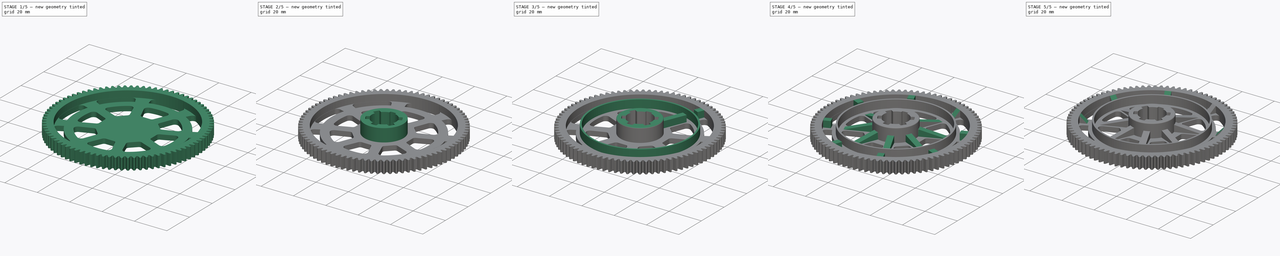
[diagram: build sequence overview — one tinted view per stage of 5, left to right]
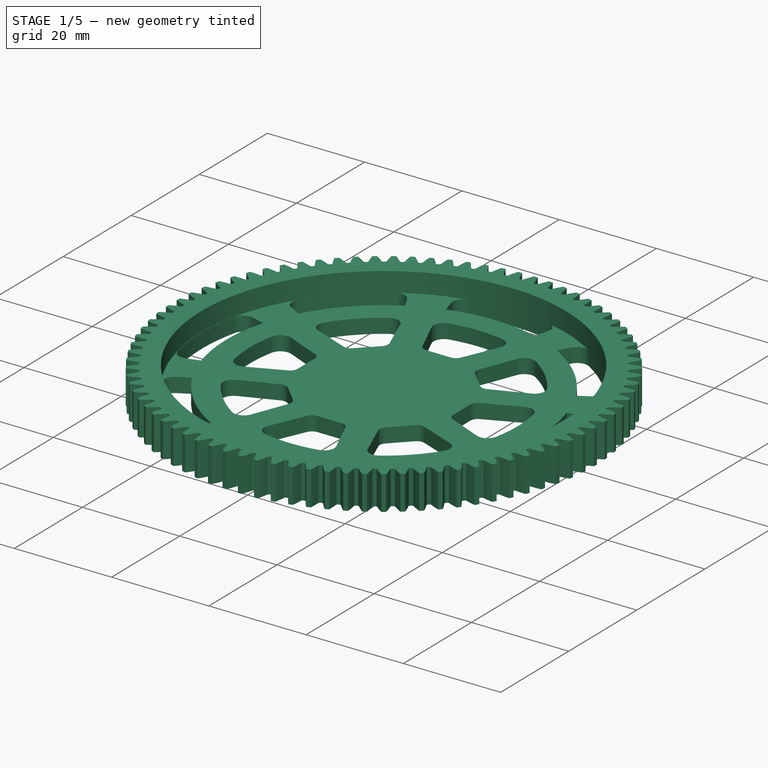
[diagram: stage 1 of 5 — iso view after this stage's code; geometry added in this stage tinted green]
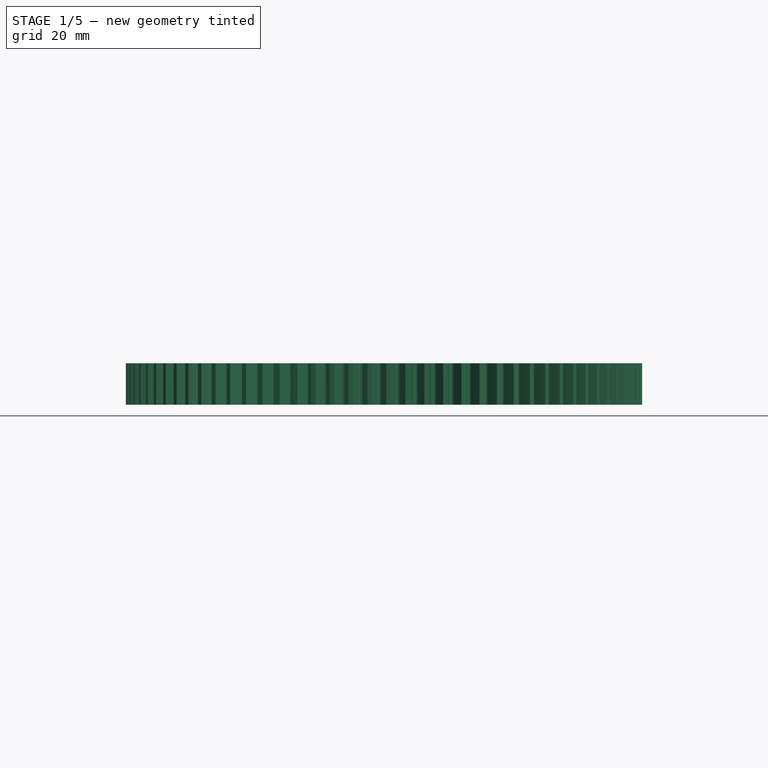
[diagram: stage 1 of 5 — front view after this stage's code; geometry added in this stage tinted green]
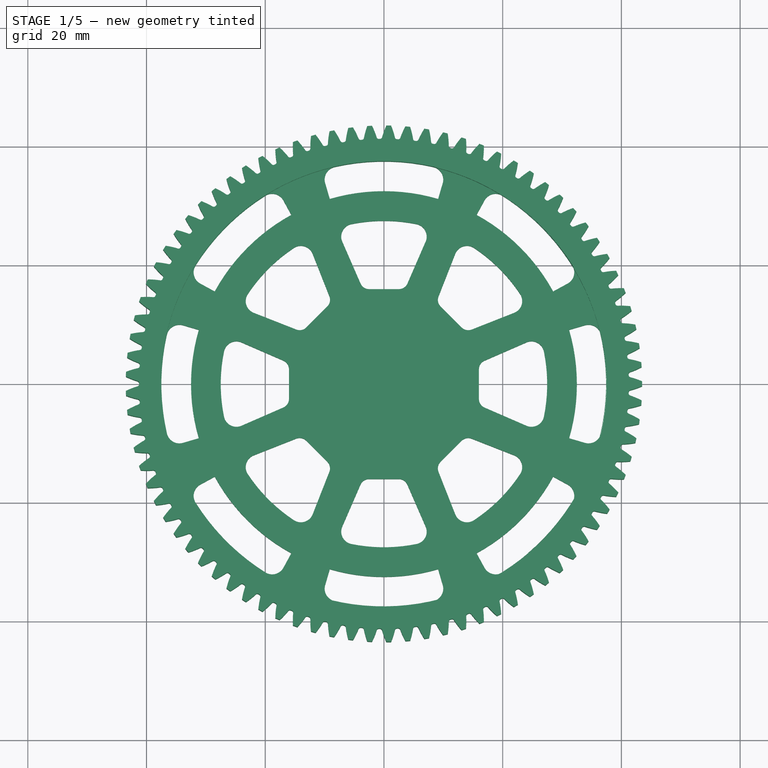
[diagram: stage 1 of 5 — top view after this stage's code; geometry added in this stage tinted green]
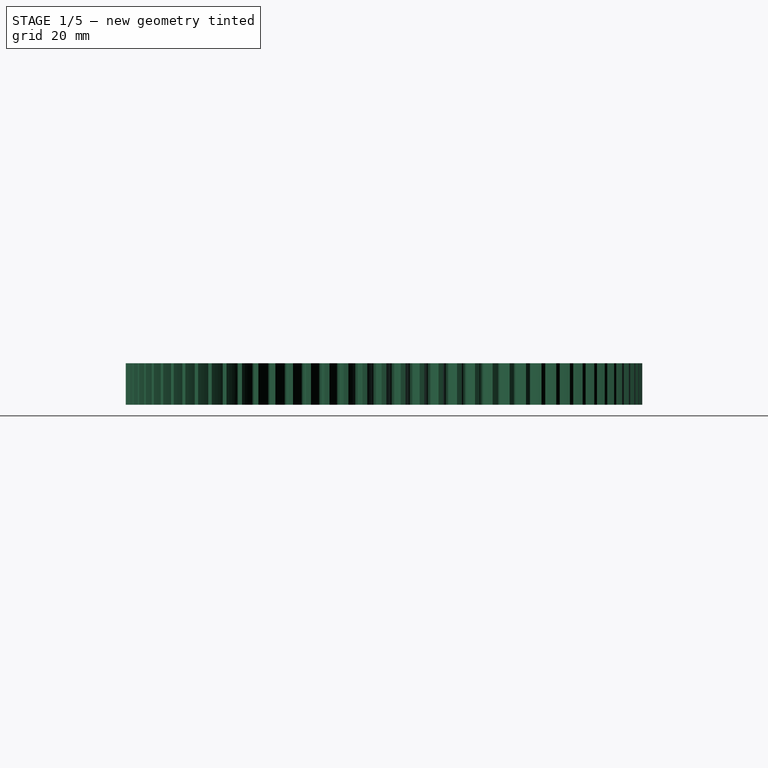
[diagram: stage 1 of 5 — right view after this stage's code; geometry added in this stage tinted green]
FCSTD DOCUMENT  (FreeCAD 0.19R24267 +148 (Git))
Label: big_gear
License: All rights reserved
LicenseURL: http://en.wikipedia.org/wiki/All_rights_reserved
objects: Sketcher::SketchObject×10, App::MeasureDistance×10, PartDesign::Plane×9, PartDesign::Pad×7, PartDesign::PolarPattern×5, PartDesign::ShapeBinder×3, PartDesign::Pocket×3, PartDesign::Body×2, PartDesign::Chamfer×2, PartDesign::Hole×2, Spreadsheet::Sheet×1, Part::Part2DObjectPython×1, PartDesign::Fillet×1, App::Part×1
note: 60 computed .brp shape members not serialized (recipe doc carries the construction recipe); baked Part::Feature solids carry a one-line shape summary decoded from their .brp

FEATURE [Spreadsheet::Sheet] Spreadsheet  label="Parameters_big"
  cells = A1=Diameters; D1=Number of teeth; G1=Height; J1=Thickness; A2=ref_diameter; B2=85; D2=N ; E2=85; G2=gear_height; H2(gear_height)=7; J2=gear_thickness; K2=6; A3=2nd_diameter; B3(second_diameter)=65; G3=tishni_balandligi; J3=two_holes_thickness; K3=5; A4=pocket_diameter; B4(pocket_diameter)=75; G4=inner_height; H4(inner_height)==4mm; J4=speed_wall_thickness; K4(speed_wall_thickness)==1mm; A5=gear_diameter; B5=87; G5=max_height; H5=16.7; A6=3rd_diameter; B6(third_diameter)==55mm; G6=inner_cirlce_height; H6=3; A7=attachment_diameter; B7(attachment_diameter)==24mm; G7=main_pocket_height; H7=4; A8=attachment_diam_hole; B8(attachment_diam_hole)==15mm; G8=attachment_height; H8(attachment_height)==8mm; G9=motion_wall_height; H9(motion_wall_height)==5mm; G10=attachment_hole_depth; H10(attachment_hole_depth)==14mm; A12=Angles; A13=hole_angle; B13(hole_angle)=32.614
FEATURE [Part::Part2DObjectPython] InvoluteGear  # Draft 2D object (typed FeaturePython)
  ExternalGear = true
  HighPrecision = true
  Modules = 1
  NumberOfTeeth = 85
  PressureAngle = 20
FEATURE [PartDesign::Pad] Pad
  Direction = (1,1,1)
  Length = 7
  Length2 = 100
  Profile = -> InvoluteGear
  Refine = true
  Type = 0
FEATURE [PartDesign::ShapeBinder] CopyXY_Plane
  TraceSupport = false
FEATURE [PartDesign::Plane] DatumPlane
  AttachmentOffset = pos=(0,0,7) rot=(0,0,1;0rad)
  Length = 61.1793
  MapMode = 5
  Placement = pos=(0,0,7) rot=(0,0,1;0rad)
  ResizeMode = 0
  Support = -> [CopyXY_Plane]
  Width = 73.6678
  expr: .AttachmentOffset.Base.z = <<Parameters_big>>.gear_height
FEATURE [Sketcher::SketchObject] Sketch
  FullyConstrained = false
  MapMode = 5
  Placement = pos=(0,0,7) rot=(0,0,1;0rad)
  Support = -> [DatumPlane]
  expr: Constraints[3] = <<Parameters_big>>.second_diameter
  expr: Constraints[2] = <<Parameters_big>>.pocket_diameter
  expr: Constraints[10] = <<Parameters_big>>.hole_angle / 2
  expr: Constraints[14] = <<Parameters_big>>.hole_angle
  sketch-geometry (11):
    g0: Circle CenterX=0 CenterY=0 CenterZ=0 NormalX=0 NormalY=0 NormalZ=1 AngleXU=0 Radius=37.5
    g1: Circle CenterX=0 CenterY=0 CenterZ=0 NormalX=0 NormalY=0 NormalZ=1 AngleXU=0 Radius=32.5
    g2: LineSegment StartX=0 StartY=0 StartZ=0 EndX=10.5294 EndY=35.9914 EndZ=0
    g3: LineSegment StartX=0 StartY=0 StartZ=0 EndX=-10.5096 EndY=35.9237 EndZ=0
    g4: ArcOfCircle CenterX=0 CenterY=0 CenterZ=0 NormalX=0 NormalY=0 NormalZ=1 AngleXU=0 Radius=18.8885 StartAngle=1.28619 EndAngle=1.5708
    g5: ArcOfCircle CenterX=0 CenterY=0 CenterZ=0 NormalX=0 NormalY=0 NormalZ=1 AngleXU=0 Radius=32.5 StartAngle=1.28619 EndAngle=1.85541
    g6: ArcOfCircle CenterX=0 CenterY=0 CenterZ=0 NormalX=0 NormalY=0 NormalZ=1 AngleXU=0 Radius=37.5 StartAngle=1.34753 EndAngle=1.79404
    g7: LineSegment StartX=9.12548 StartY=31.1926 StartZ=0 EndX=9.90253 EndY=33.8486 EndZ=0
    g8: LineSegment StartX=-9.12548 StartY=31.1926 StartZ=0 EndX=-9.90224 EndY=33.8477 EndZ=0
    g9: ArcOfCircle CenterX=7.82354 CenterY=34.4569 CenterZ=0 NormalX=0 NormalY=0 NormalZ=1 AngleXU=0 Radius=2.16613 StartAngle=5.99857 EndAngle=7.63071
    g10: ArcOfCircle CenterX=-7.82233 CenterY=34.4561 CenterZ=0 NormalX=0 NormalY=0 NormalZ=1 AngleXU=0 Radius=2.16709 StartAngle=1.79404 EndAngle=3.4262
  constraints (28):
    c: Coincident(g0,g-1)
    c: Coincident(g1,g-1)
    c: Diameter(g0) = 75
    c: Diameter(g1) = 65
    c: Coincident(g2,g-1)
    c: PointOnObject(g2,g0)
    c: Coincident(g3,g-1)
    c: Coincident(g4,g-1)
    c: PointOnObject(g4,g2)
    c: PointOnObject(g4,g-2)
    c: Angle(g4) = 0.284611
    c: Coincident(g5,g-1)
    c: PointOnObject(g5,g1)
    c: PointOnObject(g5,g3)
    c: Angle(g5) = 0.569222
    c: PointOnObject(g5,g2)
    c: Coincident(g6,g5)
    c: Coincident(g7,g5)
    c: Coincident(g8,g5)
    c: Tangent(g6,g9) = -1.5708
    c: Tangent(g7,g9) = -1.5708
    c: Tangent(g8,g10) = 1.5708
    c: Tangent(g6,g10) = -1.5708
    c: PointOnObject(g8,g3)
    c: PointOnObject(g6,g0)
    c: PointOnObject(g7,g2)
    c: Distance(g2,g6) = 2.3
    c: Distance(g6,g3) = 2.3
FEATURE [PartDesign::Body] Body001  label="hole_n1"
  Group = -> [DatumPlane,CopyXY_Plane,Sketch]
  Origin = -> Origin002
FEATURE [PartDesign::ShapeBinder] CopyXY_Plane001
  TraceSupport = false
FEATURE [PartDesign::Plane] DatumPlane001  label="holes_datum_plane"
  AttachmentOffset = pos=(0,0,7) rot=(0,0,1;0rad)
  Length = 104.381
  MapMode = 5
  Placement = pos=(0,0,7) rot=(0,0,1;0rad)
  ResizeMode = 0
  Support = -> [CopyXY_Plane001]
  Width = 104.394
  expr: .AttachmentOffset.Base.z = <<Parameters_big>>.gear_height
FEATURE [Sketcher::SketchObject] Sketch001
  FullyConstrained = false
  MapMode = 5
  Placement = pos=(0,0,7) rot=(0,0,1;0rad)
  Support = -> [DatumPlane001]
  expr: Constraints[3] = <<Parameters_big>>.second_diameter
  expr: Constraints[2] = <<Parameters_big>>.pocket_diameter
  expr: Constraints[10] = <<Parameters_big>>.hole_angle
  expr: Constraints[14] = <<Parameters_big>>.hole_angle / 2
  expr: Constraints[28] = <<Parameters_big>>.third_diameter
  expr: Constraints[49] = <<Parameters_big>>.attachment_diameter
  sketch-geometry (22):
    g0: Circle CenterX=0 CenterY=0 CenterZ=0 NormalX=0 NormalY=0 NormalZ=1 AngleXU=0 Radius=32.5
    g1: Circle CenterX=0 CenterY=0 CenterZ=0 NormalX=0 NormalY=0 NormalZ=1 AngleXU=0 Radius=37.5
    g2: LineSegment StartX=0 StartY=0 StartZ=0 EndX=10.5295 EndY=35.9917 EndZ=0
    g3: LineSegment StartX=0 StartY=0 StartZ=0 EndX=-10.5639 EndY=36.1095 EndZ=0
    g4: ArcOfCircle CenterX=0 CenterY=0 CenterZ=0 NormalX=0 NormalY=0 NormalZ=1 AngleXU=0 Radius=32.5 StartAngle=1.28619 EndAngle=1.85541
    g5: ArcOfCircle CenterX=0 CenterY=0 CenterZ=0 NormalX=0 NormalY=0 NormalZ=1 AngleXU=0 Radius=37.5 StartAngle=1.34753 EndAngle=1.79425
    g6: ArcOfCircle CenterX=0 CenterY=0 CenterZ=0 NormalX=0 NormalY=0 NormalZ=1 AngleXU=0 Radius=44.0435 StartAngle=1.28619 EndAngle=1.5708
    g7: LineSegment StartX=9.12548 StartY=31.1926 StartZ=0 EndX=9.90253 EndY=33.8487 EndZ=0
    g8: LineSegment StartX=-9.12548 StartY=31.1926 StartZ=0 EndX=-9.90439 EndY=33.855 EndZ=0
    g9: ArcOfCircle CenterX=7.82355 CenterY=34.4569 CenterZ=0 NormalX=0 NormalY=0 NormalZ=1 AngleXU=0 Radius=2.16612 StartAngle=5.99857 EndAngle=7.63071
    g10: ArcOfCircle CenterX=-7.83141 CenterY=34.4615 CenterZ=0 NormalX=0 NormalY=0 NormalZ=1 AngleXU=0 Radius=2.15988 StartAngle=1.79425 EndAngle=3.4262
    g11: Circle CenterX=0 CenterY=0 CenterZ=0 NormalX=0 NormalY=0 NormalZ=1 AngleXU=0 Radius=27.5
    g12: LineSegment StartX=0 StartY=0 StartZ=0 EndX=0 EndY=16 EndZ=0
    g13: LineSegment StartX=-2.5 StartY=16 StartZ=0 EndX=2.5 EndY=16 EndZ=0
    g14: ArcOfCircle CenterX=0 CenterY=0 CenterZ=0 NormalX=0 NormalY=0 NormalZ=1 AngleXU=0 Radius=27.5 StartAngle=1.36992 EndAngle=1.77167
    g15: LineSegment StartX=3.96397 StartY=16.9603 StartZ=0 EndX=7.02142 EndY=24.0005 EndZ=0
    g16: LineSegment StartX=-3.94448 StartY=16.9458 StartZ=0 EndX=-7.02032 EndY=23.9967 EndZ=0
    g17: ArcOfCircle CenterX=-5.06038 CenterY=24.8517 CenterZ=0 NormalX=0 NormalY=0 NormalZ=1 AngleXU=0 Radius=2.13831 StartAngle=1.77167 EndAngle=3.55294
    g18: ArcOfCircle CenterX=5.06046 CenterY=24.8521 CenterZ=0 NormalX=0 NormalY=0 NormalZ=1 AngleXU=0 Radius=2.1379 StartAngle=5.87348 EndAngle=7.6531
    g19: ArcOfCircle CenterX=2.5 CenterY=17.5961 CenterZ=0 NormalX=0 NormalY=0 NormalZ=1 AngleXU=0 Radius=1.59607 StartAngle=4.71239 EndAngle=5.87348
    g20: ArcOfCircle CenterX=-2.5 CenterY=17.5759 CenterZ=0 NormalX=0 NormalY=0 NormalZ=1 AngleXU=0 Radius=1.57594 StartAngle=3.55294 EndAngle=4.71239
    g21: Circle CenterX=0 CenterY=0 CenterZ=0 NormalX=0 NormalY=0 NormalZ=1 AngleXU=0 Radius=12
  constraints (51):
    c: Coincident(g0,g-1)
    c: Coincident(g1,g-1)
    c: Diameter(g1) = 75
    c: Diameter(g0) = 65
    c: Coincident(g2,g-1)
    c: Coincident(g3,g-1)
    c: Coincident(g4,g-1)
    c: PointOnObject(g4,g2)
    c: PointOnObject(g4,g0)
    c: Coincident(g5,g4)
    c: Angle(g4) = 0.569222
    c: Coincident(g6,g4)
    c: PointOnObject(g6,g2)
    c: PointOnObject(g6,g-2)
    c: Angle(g6) = 0.284611
    c: Coincident(g7,g4)
    c: Coincident(g8,g4)
    c: Tangent(g5,g9) = -1.5708
    c: Tangent(g7,g9) = -1.5708
    c: PointOnObject(g4,g3)
    c: PointOnObject(g5,g1)
    c: PointOnObject(g7,g2)
    c: Tangent(g8,g10) = 1.5708
    c: Tangent(g5,g10) = -1.5708
    c: Distance(g5,g2) = 2.3
    c: Distance(g3,g5) = 2.3
    c: PointOnObject(g8,g3)
    c: Coincident(g11,g4)
    c: Diameter(g11) = 55
    c: Coincident(g12,g4)
    c: PointOnObject(g12,g-2)
    c: DistanceY(g12,g12) = 16
    c: Horizontal(g13)
    c: Coincident(g14,g4)
    c: Tangent(g14,g17) = -1.5708
    c: Tangent(g16,g17) = 1.5708
    c: PointOnObject(g16,g3)
    c: Tangent(g14,g18) = -1.5708
    c: Tangent(g15,g18) = -1.5708
    c: PointOnObject(g15,g2)
    c: PointOnObject(g14,g11)
    c: Tangent(g13,g19) = -1.5708
    c: Tangent(g15,g19) = -1.5708
    c: Tangent(g13,g20) = -1.5708
    c: Tangent(g16,g20) = 1.5708
    c: Distance(g14,g2) = 2.3
    c: Distance(g14,g3) = 2.3
    c: Symmetric(g13,g13,g12)
    c: Coincident(g21,g4)
    c: Diameter(g21) = 24
    c: DistanceX(g13,g13) = 5
FEATURE [PartDesign::Plane] DatumPlane002  label="pocket_hole_datum_plane"
  AttachmentOffset = pos=(-1,0,0) rot=(0,0,1;0rad)
  Length = 104.381
  MapMode = 5
  Placement = pos=(-1,0,7) rot=(0,0,1;0rad)
  ResizeMode = 0
  Width = 104.394
FEATURE [Sketcher::SketchObject] Sketch002
  FullyConstrained = false
  MapMode = 5
  Placement = pos=(-1,0,7) rot=(0,0,1;0rad)
  Support = -> [DatumPlane002]
  expr: Constraints[0] = <<Parameters_big>>.pocket_diameter
  sketch-geometry (1):
    g0: Circle CenterX=0.920141 CenterY=-0.02579 CenterZ=0 NormalX=0 NormalY=0 NormalZ=1 AngleXU=0 Radius=37.5
  constraints (2):
    c: Diameter(g0) = 75
    c: DistanceY(g0,g-1) = 0.02579
FEATURE [PartDesign::Pocket] Pocket001  label="pocket_hole"
  BaseFeature = -> Pad
  Length = 4
  Length2 = 100
  Profile = -> Sketch002
  Refine = true
  Type = 0
  expr: Length = <<Parameters_big>>.inner_height
FEATURE [App::MeasureDistance] Distance  label="Distance: 4.20 mm"
  Distance = 4.19532
  P1 = (-8.77176,15.8444,7)
  P2 = (-4.82441,17.2653,7)
FEATURE [PartDesign::Pocket] Pocket  label="main_holes"
  BaseFeature = -> Pocket001
  Length = 0
  Length2 = 100
  Profile = -> Sketch001
  Refine = true
  Type = 3
  UpToFace = -> Pocket001 [Face4]
FEATURE [PartDesign::PolarPattern] PolarPattern
  Angle = 360
  Axis = -> Sketch001 [N_Axis]
  BaseFeature = -> Pocket
  Occurrences = 8
  Originals = -> [Pocket]
  Refine = true
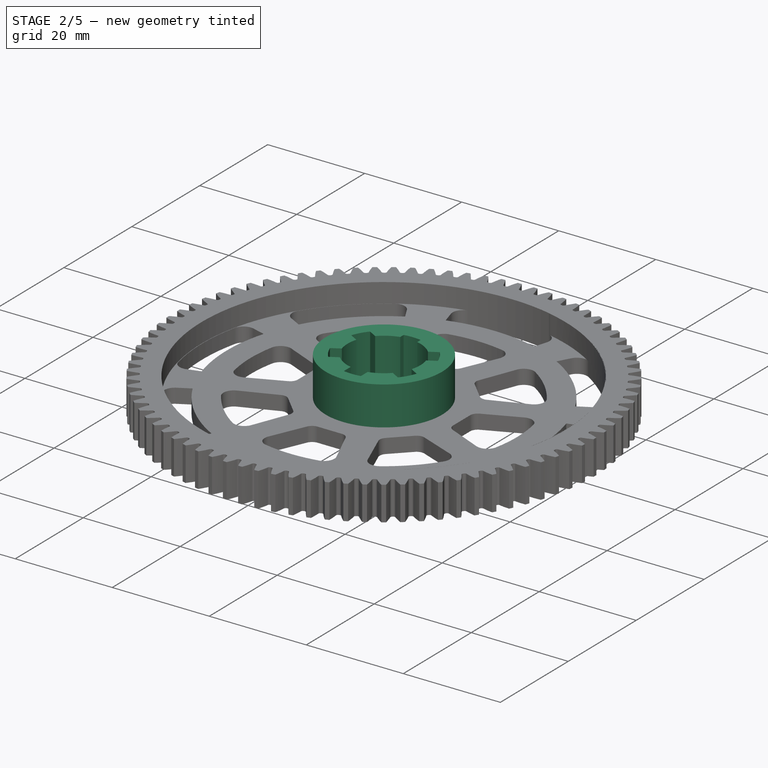
[diagram: stage 2 of 5 — iso view after this stage's code; geometry added in this stage tinted green]
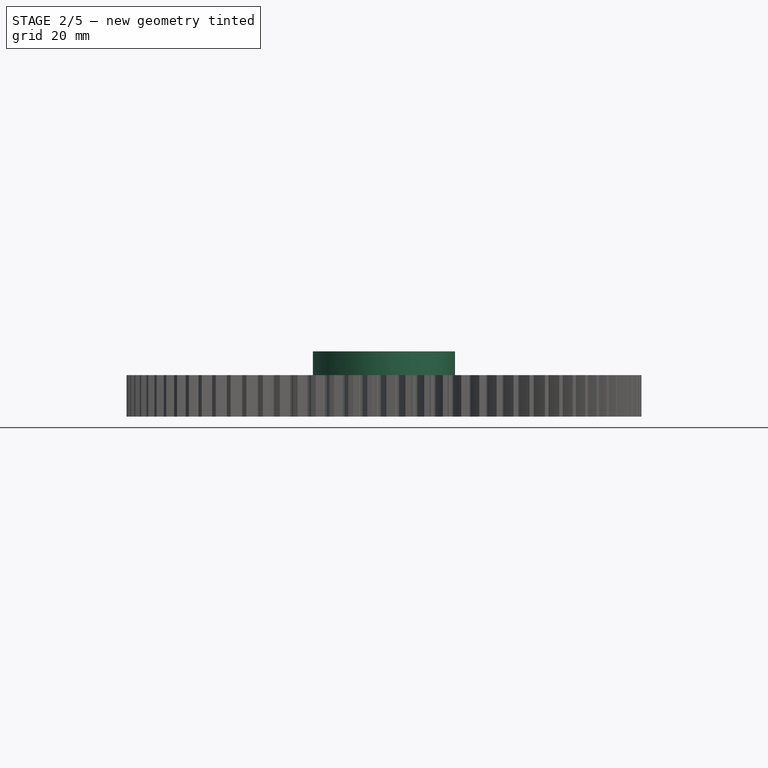
[diagram: stage 2 of 5 — front view after this stage's code; geometry added in this stage tinted green]
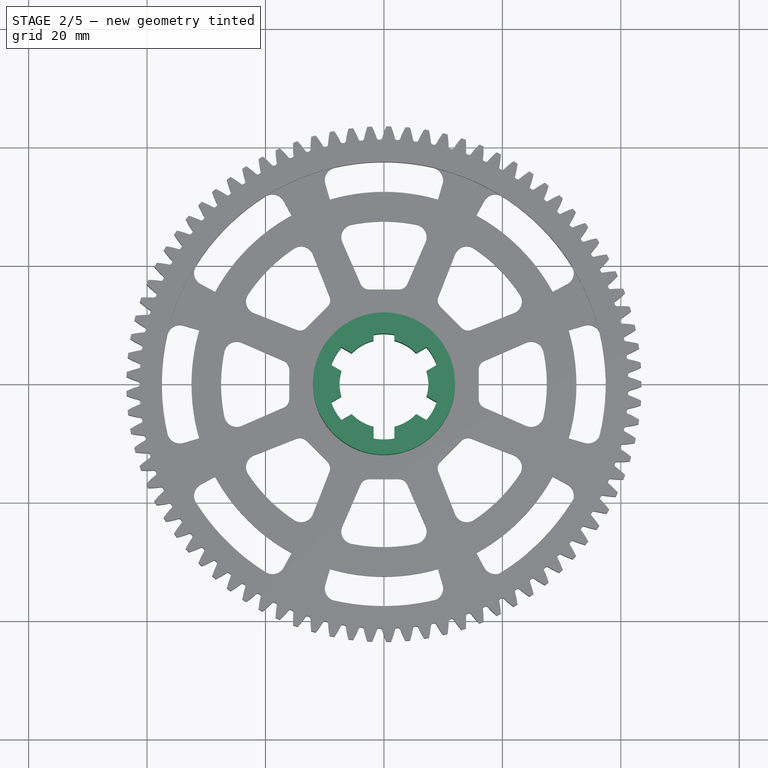
[diagram: stage 2 of 5 — top view after this stage's code; geometry added in this stage tinted green]
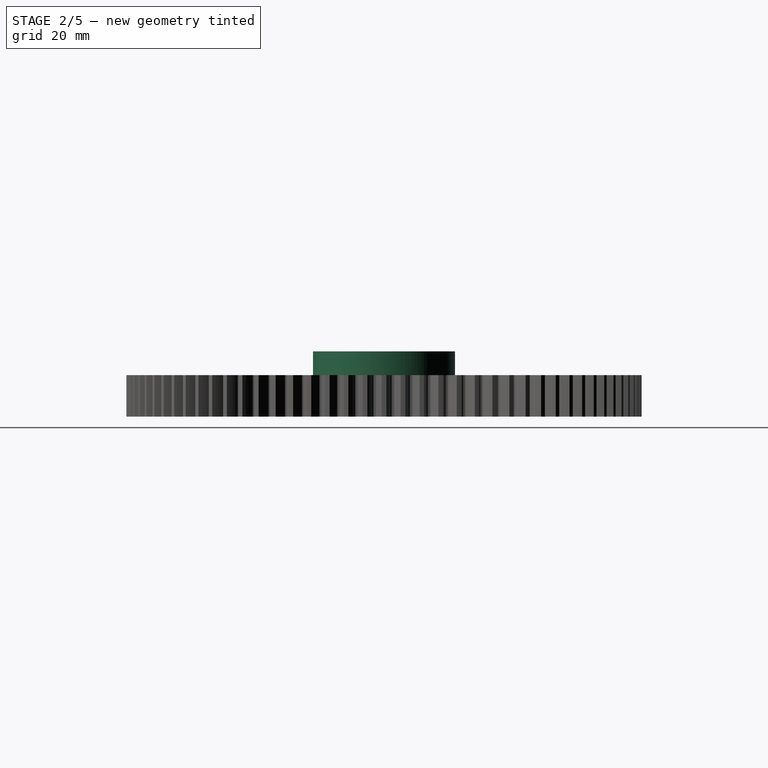
[diagram: stage 2 of 5 — right view after this stage's code; geometry added in this stage tinted green]
FEATURE [PartDesign::Plane] DatumPlane003  label="diameter_attachment_datum_plane"
  Length = 104.381
  MapMode = 5
  Placement = pos=(0,0,3) rot=(0,0,1;0rad)
  ResizeMode = 0
  Support = -> [PolarPattern]
  Width = 104.394
FEATURE [Sketcher::SketchObject] Sketch003  label="atahment"
  FullyConstrained = true
  MapMode = 5
  Placement = pos=(0,0,3) rot=(0,0,1;0rad)
  Support = -> [DatumPlane003]
  sketch-geometry (1):
    g0: Circle CenterX=0 CenterY=0 CenterZ=0 NormalX=0 NormalY=0 NormalZ=1 AngleXU=0 Radius=12
  constraints (2):
    c: Coincident(g0,g-1)
    c: Diameter(g0) = 24
FEATURE [PartDesign::Pad] Pad001  label="1mm_pad"
  BaseFeature = -> PolarPattern
  Direction = (1,1,1)
  Length = 8
  Length2 = 100
  Profile = -> Sketch003
  Refine = true
  Type = 0
  expr: Length = <<Parameters_big>>.attachment_height
FEATURE [PartDesign::Plane] DatumPlane004  label="attachment_hole_datum_plane"
  Length = 104.381
  MapMode = 5
  Placement = pos=(0,0,11) rot=(0,0,1;0rad)
  ResizeMode = 0
  Support = -> [Pad001]
  Width = 104.394
FEATURE [Sketcher::SketchObject] Sketch004
  FullyConstrained = true
  MapMode = 5
  Placement = pos=(0,0,11) rot=(0,0,1;0rad)
  Support = -> [DatumPlane004]
FEATURE [Sketcher::SketchObject] Sketch005  label="hole_attachment"
  FullyConstrained = true
  MapMode = 5
  Placement = pos=(0,0,11) rot=(0,0,1;0rad)
  Support = -> [DatumPlane004]
  expr: Constraints[1] = <<Parameters_big>>.attachment_diam_hole
  sketch-geometry (5):
    g0: ArcOfCircle CenterX=0 CenterY=0 CenterZ=0 NormalX=0 NormalY=0 NormalZ=1 AngleXU=0 Radius=7.5 StartAngle=1.8063 EndAngle=7.61848
    g1: LineSegment StartX=-1.75 StartY=7.29298 StartZ=0 EndX=1.75 EndY=7.29298 EndZ=0
    g2: LineSegment StartX=1.75 StartY=7.29298 StartZ=0 EndX=1.75 EndY=9.29298 EndZ=0
    g3: LineSegment StartX=-1.75 StartY=7.29298 StartZ=0 EndX=-1.75 EndY=9.29298 EndZ=0
    g4: ArcOfCircle CenterX=0 CenterY=0 CenterZ=0 NormalX=0 NormalY=0 NormalZ=1 AngleXU=0 Radius=9.45632 StartAngle=1.38466 EndAngle=1.75693
  constraints (14):
    c: Coincident(g0,g-1)
    c: Diameter(g0) = 15
    c: DistanceX(g1,g1) = 3.5
    c: Coincident(g2,g1)
    c: Vertical(g2)
    c: Coincident(g3,g1)
    c: Vertical(g3)
    c: Equal(g3,g2)
    c: DistanceY(g2,g2) = 2
    c: Coincident(g4,g0)
    c: Coincident(g4,g2)
    c: Coincident(g4,g3)
    c: Coincident(g0,g1)
    c: Coincident(g0,g1)
FEATURE [App::MeasureDistance] Distance001  label="Distance: 2.06 mm"
  Distance = 2.05605
  P1 = (-1.84041,9.31807,14)
  P2 = (-1.03662,7.42565,14)
FEATURE [App::MeasureDistance] Distance002  label="Distance: 2.15 mm"
  Distance = 2.1506
  P1 = (-1.87757,9.40694,14)
  P2 = (-1.04322,7.42478,14)
FEATURE [PartDesign::Pocket] Pocket002  label="attachment_hole"
  BaseFeature = -> Pad001
  Length = 14
  Length2 = 100
  Profile = -> Sketch005
  Refine = true
  Type = 0
  expr: Length = <<Parameters_big>>.attachment_hole_depth
FEATURE [PartDesign::PolarPattern] PolarPattern001  label="attahcment_hole_pattern"
  Angle = 360
  Axis = -> Sketch005 [N_Axis]
  BaseFeature = -> Pocket002
  Occurrences = 6
  Originals = -> [Pocket002]
  Refine = true
FEATURE [PartDesign::Pad] Pad002
  BaseFeature = -> PolarPattern001
  Direction = (1,1,1)
  Length = 1
  Length2 = 100
  Profile = -> PolarPattern001 [Face619]
  Refine = true
  Type = 0
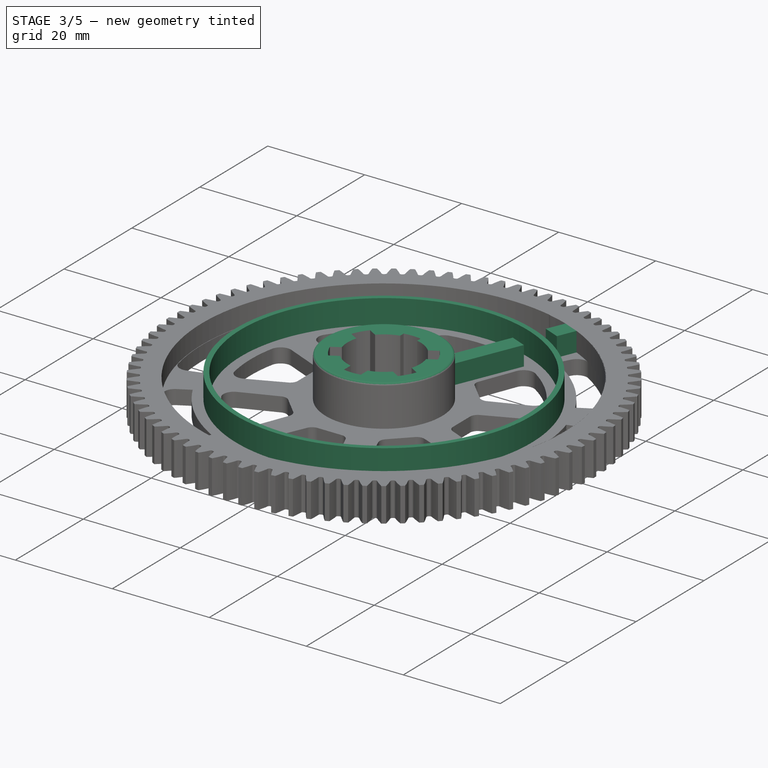
[diagram: stage 3 of 5 — iso view after this stage's code; geometry added in this stage tinted green]
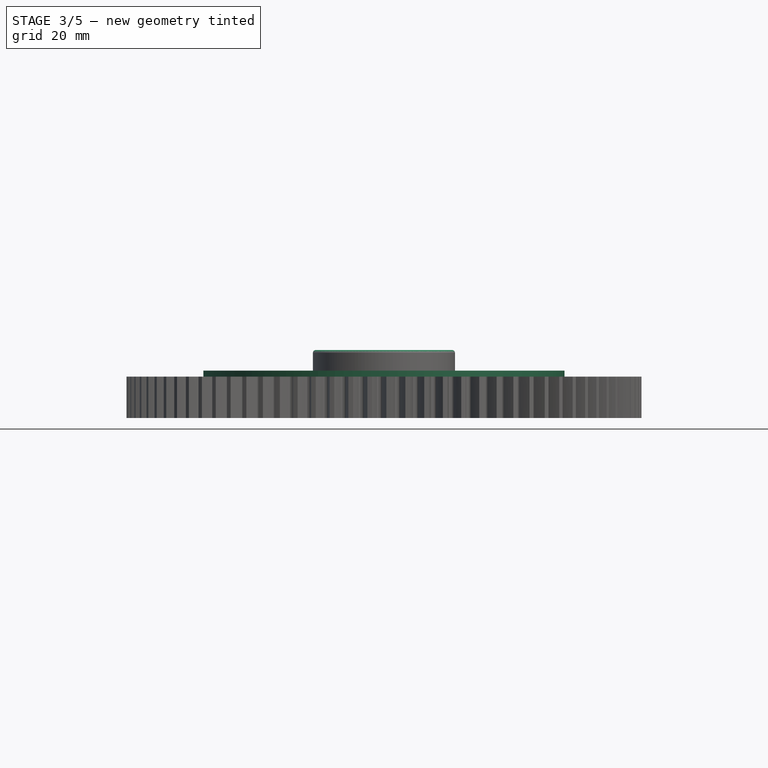
[diagram: stage 3 of 5 — front view after this stage's code; geometry added in this stage tinted green]
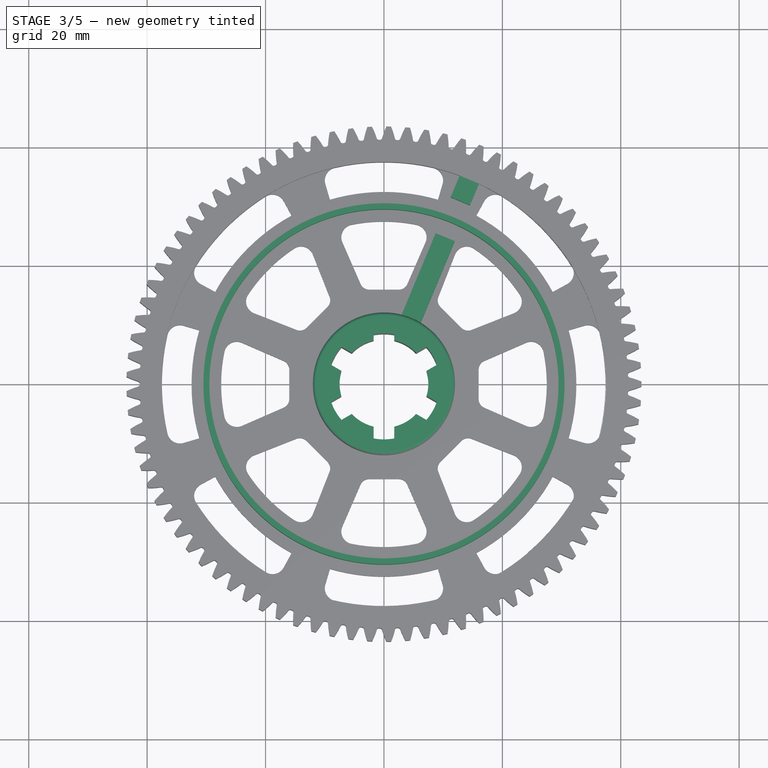
[diagram: stage 3 of 5 — top view after this stage's code; geometry added in this stage tinted green]
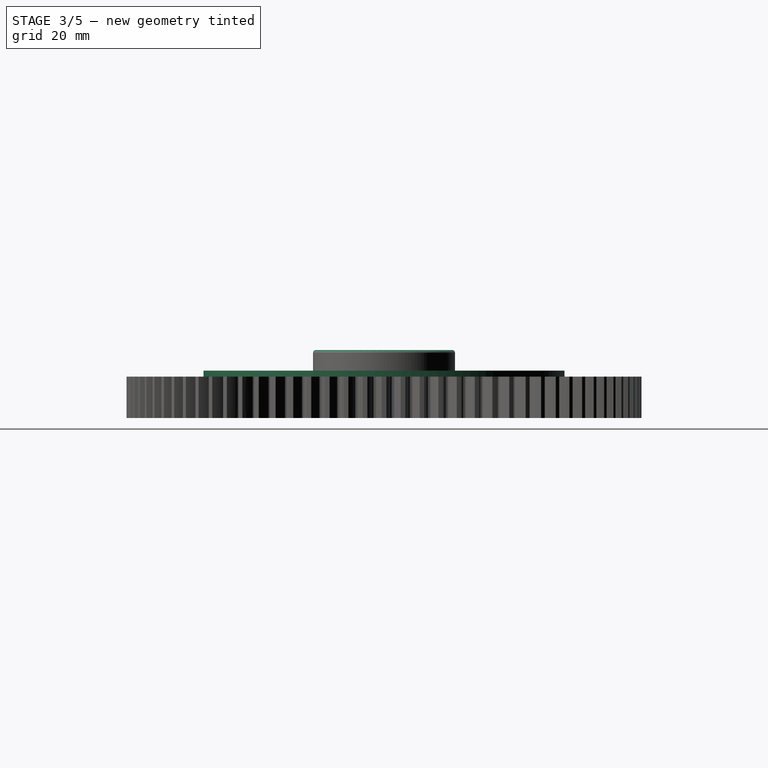
[diagram: stage 3 of 5 — right view after this stage's code; geometry added in this stage tinted green]
FEATURE [PartDesign::Plane] DatumPlane005
  Length = 104.381
  Placement = pos=(0,0,3) rot=(0,0,1;0rad)
  ResizeMode = 0
  Support = -> [Origin001]
  Width = 104.394
FEATURE [Sketcher::SketchObject] Sketch006  label="motion_wall"
  FullyConstrained = true
  MapMode = 5
  Placement = pos=(0,0,3) rot=(0,0,1;0rad)
  Support = -> [DatumPlane005]
  expr: Constraints[1] = <<Parameters_big>>.second_diameter
  expr: Constraints[3] = <<Parameters_big>>.second_diameter - 2 * 2
  expr: Constraints[5] = <<Parameters_big>>.third_diameter
  expr: Constraints[7] = <<Parameters_big>>.third_diameter + 2 * 2mm
  sketch-geometry (4):
    g0: Circle CenterX=0 CenterY=0 CenterZ=0 NormalX=0 NormalY=0 NormalZ=1 AngleXU=0 Radius=32.5
    g1: Circle CenterX=0 CenterY=0 CenterZ=0 NormalX=0 NormalY=0 NormalZ=1 AngleXU=0 Radius=30.5
    g2: Circle CenterX=0 CenterY=0 CenterZ=0 NormalX=0 NormalY=0 NormalZ=1 AngleXU=0 Radius=27.5
    g3: Circle CenterX=0 CenterY=0 CenterZ=0 NormalX=0 NormalY=0 NormalZ=1 AngleXU=0 Radius=29.5
  constraints (8):
    c: Coincident(g0,g-1)
    c: Diameter(g0) = 65
    c: Coincident(g1,g-1)
    c: Diameter(g1) = 61
    c: Coincident(g2,g1)
    c: Diameter(g2) = 55
    c: Coincident(g3,g1)
    c: Diameter(g3) = 59
FEATURE [PartDesign::Pad] Pad003
  BaseFeature = -> Pad002
  Direction = (1,1,1)
  Length = 5
  Length2 = 100
  Profile = -> Sketch006
  Refine = true
  Type = 0
  expr: Length = <<Parameters_big>>.motion_wall_height
FEATURE [App::MeasureDistance] Distance003  label="Distance: 2.92 mm"
  Distance = 2.92356
  P1 = (-15.5509,-22.6715,3)
  P2 = (-13.1754,-20.9674,3)
FEATURE [PartDesign::Pad] Pad004
  BaseFeature = -> Pad003
  Direction = (1,1,1)
  Length = 0.5
  Length2 = 100
  Profile = -> Pad003 [Face654]
  Refine = true
  Type = 0
FEATURE [PartDesign::Fillet] Fillet
  Base = -> Pad004 [Edge1]
  BaseFeature = -> Pad004
  Radius = 0.5
  Refine = true
  SupportTransform = false
FEATURE [App::MeasureDistance] Distance004  label="Distance: 1.38 mm"
  Distance = 1.38242
  P1 = (16.6159,-33.6028,7)
  P2 = (16.0512,-32.341,7)
FEATURE [PartDesign::ShapeBinder] CopyYZ_Plane
  Placement = pos=(0,0,0) rot=(0.57735,0.57735,0.57735;2.0944rad)
  TraceSupport = false
FEATURE [PartDesign::Plane] DatumPlane006
  Length = 104.381
  MapMode = 5
  Placement = pos=(0,0,3) rot=(0,0,1;0rad)
  ResizeMode = 0
  Support = -> [Fillet]
  Width = 104.394
FEATURE [Sketcher::SketchObject] Sketch007
  FullyConstrained = true
  MapMode = 5
  Placement = pos=(0,0,3) rot=(0,0,1;0rad)
  Support = -> [DatumPlane006]
  expr: Constraints[1] = <<Parameters_big>>.pocket_diameter
  expr: Constraints[6] = <<Parameters_big>>.attachment_diameter
  sketch-geometry (13):
    g0: Circle CenterX=0 CenterY=0 CenterZ=0 NormalX=0 NormalY=0 NormalZ=1 AngleXU=0 Radius=37.5
    g1: LineSegment StartX=16.0411 StartY=33.8959 StartZ=0 EndX=6.18698 EndY=10.2821 EndZ=0
    g2: LineSegment StartX=12.811 StartY=35.2438 StartZ=0 EndX=2.95694 EndY=11.63 EndZ=0
    g3: Circle CenterX=0 CenterY=0 CenterZ=0 NormalX=0 NormalY=0 NormalZ=1 AngleXU=0 Radius=12
    g4: LineSegment StartX=0 StartY=0 StartZ=0 EndX=0 EndY=12 EndZ=0
    g5: LineSegment StartX=6.18698 StartY=10.2821 StartZ=0 EndX=11.9637 EndY=24.1251 EndZ=0
    g6: LineSegment StartX=2.95694 StartY=11.63 StartZ=0 EndX=8.73365 EndY=25.473 EndZ=0
    g7: LineSegment StartX=8.73365 StartY=25.473 StartZ=0 EndX=11.9637 EndY=24.1251 EndZ=0
    g8: ArcOfCircle CenterX=0 CenterY=0 CenterZ=0 NormalX=0 NormalY=0 NormalZ=1 AngleXU=0 Radius=12 StartAngle=1.02911 EndAngle=1.32182
    g9: LineSegment StartX=12.811 StartY=35.2438 StartZ=0 EndX=11.2706 EndY=31.5524 EndZ=0
    g10: LineSegment StartX=11.2706 StartY=31.5524 StartZ=0 EndX=14.5006 EndY=30.2045 EndZ=0
    g11: LineSegment StartX=14.5006 StartY=30.2045 StartZ=0 EndX=16.0411 EndY=33.8959 EndZ=0
    g12: ArcOfCircle CenterX=0 CenterY=0 CenterZ=0 NormalX=0 NormalY=0 NormalZ=1 AngleXU=0 Radius=37.5 StartAngle=1.12878 EndAngle=1.22215
  constraints (35):
    c: Coincident(g0,g-1)
    c: Diameter(g0) = 75
    c: PointOnObject(g1,g0)
    c: Parallel(g2,g1)
    c: Distance(g2,g1) = 3.5
    c: Coincident(g3,g-1)
    c: Diameter(g3) = 24
    c: PointOnObject(g1,g3)
    c: Coincident(g4,g-1)
    c: PointOnObject(g4,g3)
    c: Vertical(g4)
    c: Equal(g1,g2)
    c: Coincident(g5,g1)
    c: PointOnObject(g5,g1)
    c: Distance(g5) = 15
    c: Coincident(g6,g2)
    c: PointOnObject(g6,g2)
    c: Distance(g6) = 15
    c: Coincident(g7,g6)
    c: Coincident(g7,g5)
    c: Coincident(g8,g-1)
    c: Coincident(g8,g5)
    c: Coincident(g8,g6)
    c: Coincident(g2,g9)
    c: PointOnObject(g9,g2)
    c: Coincident(g9,g10)
    c: PointOnObject(g10,g1)
    c: Coincident(g10,g11)
    c: Coincident(g11,g1)
    c: Distance(g11) = 4
    c: Equal(g9,g11)
    c: Coincident(g12,g8)
    c: Coincident(g12,g11)
    c: Coincident(g12,g9)
    c: Distance(g4,g6) = 2.98
FEATURE [PartDesign::Pad] Pad005  label="inner_support"
  BaseFeature = -> Fillet
  Direction = (1,1,1)
  Length = 4
  Length2 = 100
  Profile = -> Sketch007
  Refine = true
  Type = 0
  expr: Length = <<Parameters_big>>.inner_height
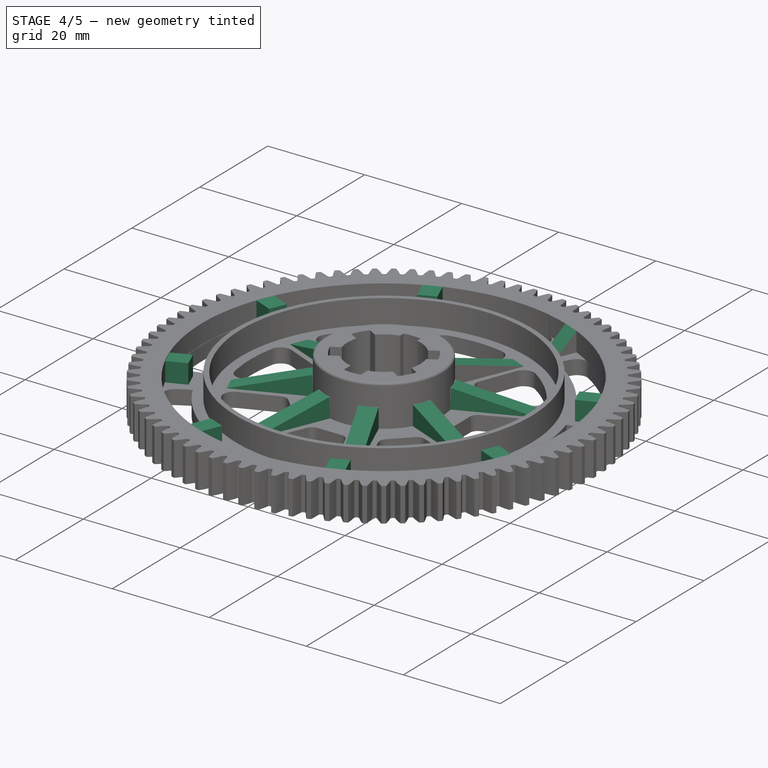
[diagram: stage 4 of 5 — iso view after this stage's code; geometry added in this stage tinted green]
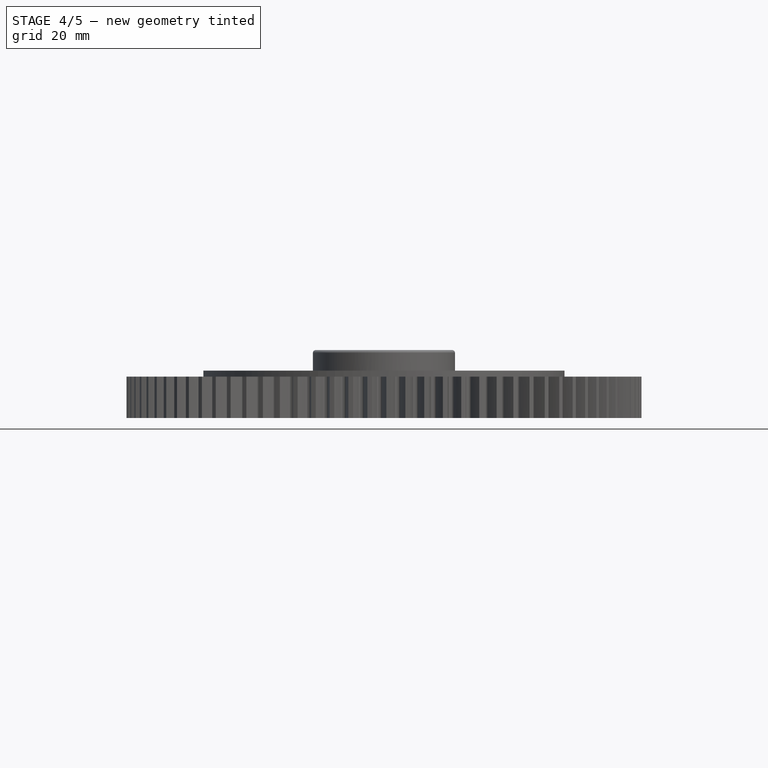
[diagram: stage 4 of 5 — front view after this stage's code; geometry added in this stage tinted green]
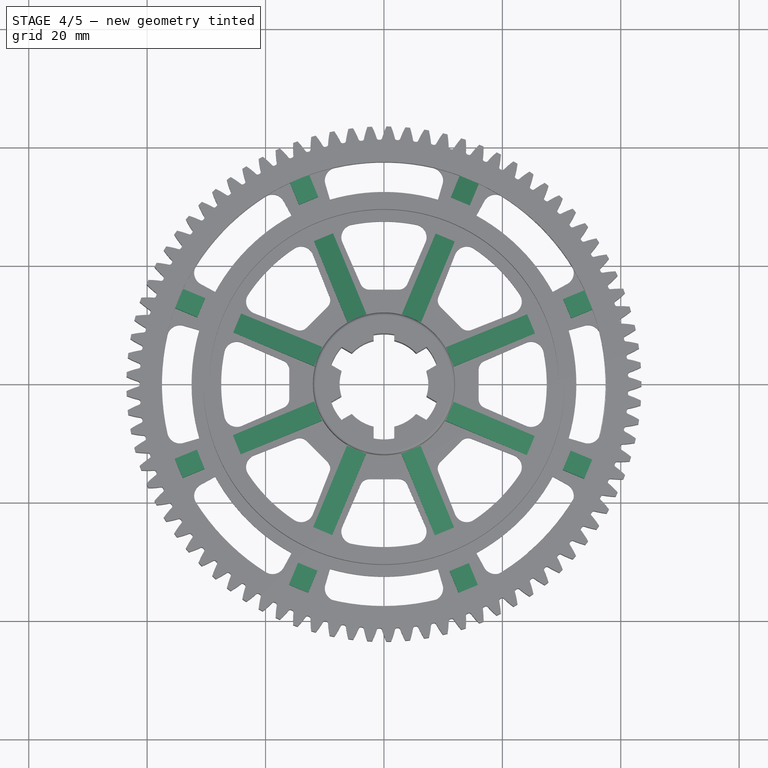
[diagram: stage 4 of 5 — top view after this stage's code; geometry added in this stage tinted green]
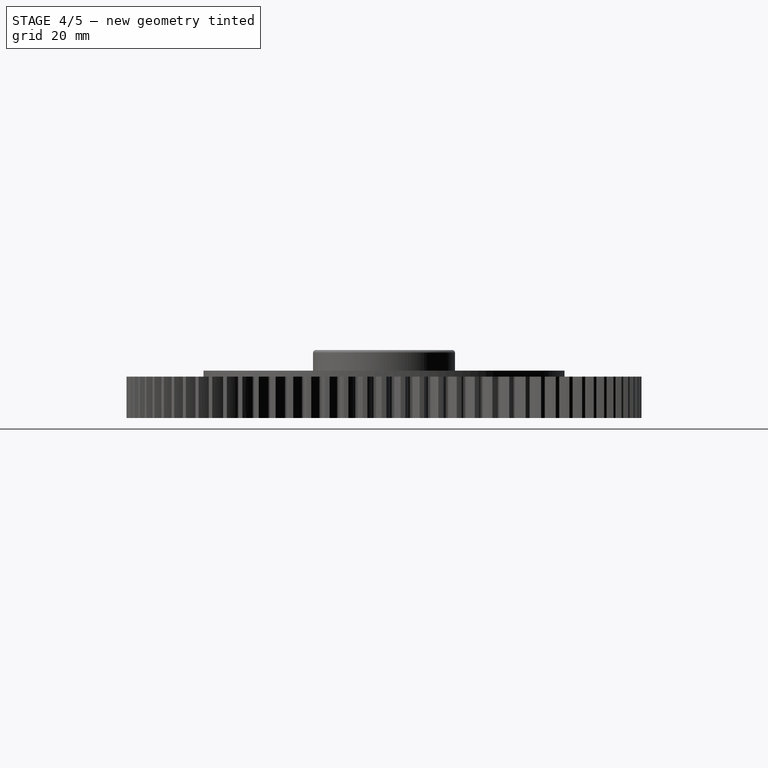
[diagram: stage 4 of 5 — right view after this stage's code; geometry added in this stage tinted green]
FEATURE [App::MeasureDistance] Distance005  label="Distance: 3.94 mm"
  Distance = 3.945
  P1 = (12.7345,35.2157,7)
  P2 = (11.2706,31.5524,7)
FEATURE [PartDesign::Chamfer] Chamfer  label="small_support_chamfer"
  Angle = 45
  Base = -> Pad005 [Edge2019]
  BaseFeature = -> Pad005
  ChamferType = 1
  FlipDirection = false
  Refine = true
  Size = 3.99
  Size2 = 3.94
  SupportTransform = false
FEATURE [App::MeasureDistance] Distance006  label="Distance: 4.00 mm"
  Distance = 4.00013
  P1 = (14.5006,30.2045,7)
  P2 = (14.5314,30.2134,3)
FEATURE [App::MeasureDistance] Distance007  label="Distance: 14.98 mm"
  Distance = 14.9795
  P1 = (11.9637,24.1251,7)
  P2 = (6.19488,10.301,7)
FEATURE [App::MeasureDistance] Distance008  label="Distance: 4.00 mm001"
  Distance = 4.00003
  P1 = (8.72748,25.4861,3)
  P2 = (8.73365,25.473,7)
FEATURE [PartDesign::Chamfer] Chamfer001  label="long_support_chamfer"
  Angle = 45
  Base = -> Chamfer [Edge2023]
  BaseFeature = -> Chamfer
  ChamferType = 1
  FlipDirection = false
  Refine = true
  Size = 3.99
  Size2 = 14.85
  SupportTransform = false
FEATURE [PartDesign::PolarPattern] PolarPattern002
  Angle = 360
  Axis = -> Sketch007 [N_Axis]
  BaseFeature = -> Chamfer001
  Occurrences = 8
  Originals = -> [Pad005]
  Refine = true
FEATURE [PartDesign::PolarPattern] PolarPattern003
  Angle = 360
  Axis = -> Z_Axis001
  BaseFeature = -> PolarPattern002
  Occurrences = 8
  Originals = -> [Chamfer001]
  Refine = true
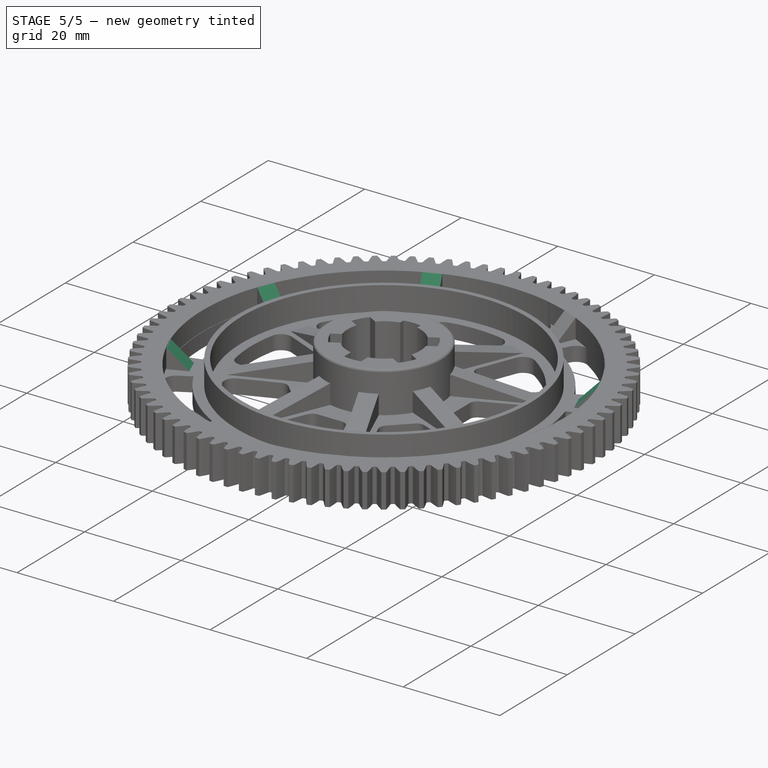
[diagram: stage 5 of 5 — iso view after this stage's code; geometry added in this stage tinted green]
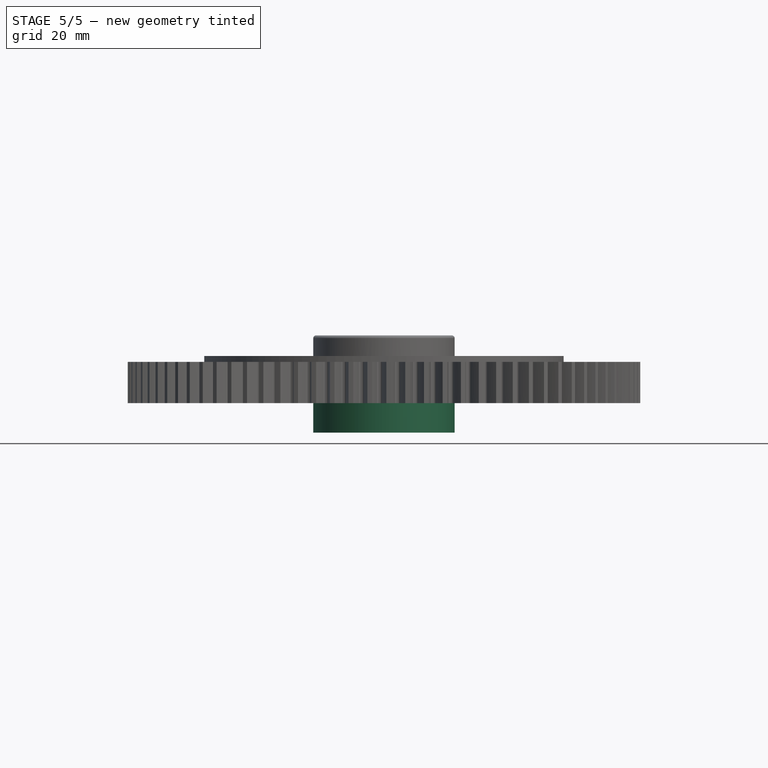
[diagram: stage 5 of 5 — front view after this stage's code; geometry added in this stage tinted green]
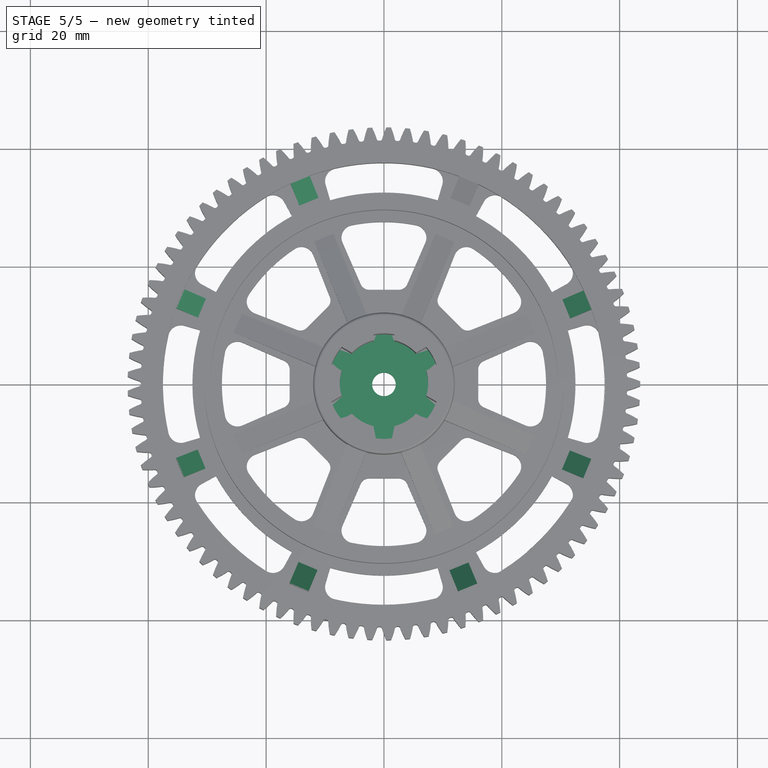
[diagram: stage 5 of 5 — top view after this stage's code; geometry added in this stage tinted green]
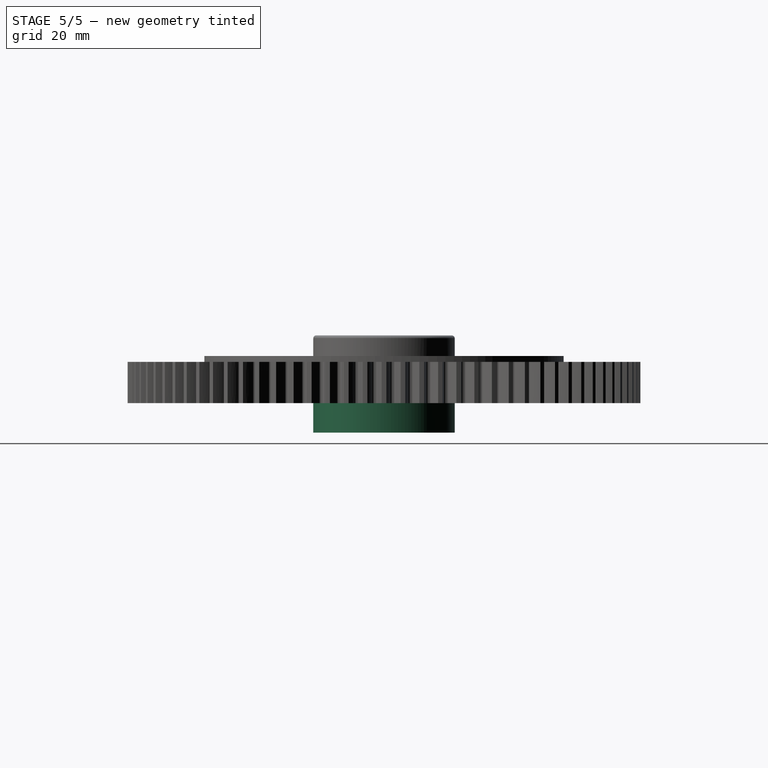
[diagram: stage 5 of 5 — right view after this stage's code; geometry added in this stage tinted green]
FEATURE [PartDesign::PolarPattern] PolarPattern004
  Angle = 360
  Axis = -> Z_Axis001
  BaseFeature = -> PolarPattern003
  Occurrences = 8
  Originals = -> [Chamfer]
  Refine = true
FEATURE [PartDesign::Plane] DatumPlane007
  Length = 104.381
  MapMode = 5
  Placement = pos=(0,0,0) rot=(1,0,0;3.14159rad)
  ResizeMode = 0
  Support = -> [PolarPattern004]
  Width = 104.394
FEATURE [Sketcher::SketchObject] Sketch008
  FullyConstrained = true
  MapMode = 5
  Placement = pos=(0,0,0) rot=(1,0,0;3.14159rad)
  Support = -> [DatumPlane007]
  sketch-geometry (1):
    g0: Circle CenterX=0 CenterY=0 CenterZ=0 NormalX=0 NormalY=0 NormalZ=1 AngleXU=0 Radius=12
  constraints (2):
    c: Coincident(g0,g-1)
    c: Diameter(g0) = 24
FEATURE [PartDesign::Pad] Pad006  label="lid_pad"
  BaseFeature = -> PolarPattern004
  Direction = (1,1,1)
  Length = 5
  Length2 = 100
  Profile = -> Sketch008
  Refine = true
  Type = 0
FEATURE [PartDesign::Plane] DatumPlane008
  Length = 104.381
  MapMode = 5
  Placement = pos=(0,0,-5) rot=(1,0,0;3.14159rad)
  ResizeMode = 0
  Support = -> [Pad006]
  Width = 104.394
FEATURE [Sketcher::SketchObject] Sketch009
  FullyConstrained = true
  MapMode = 5
  Placement = pos=(0,0,-5) rot=(1,0,0;3.14159rad)
  Support = -> [DatumPlane008]
  sketch-geometry (1):
    g0: Circle CenterX=0 CenterY=0 CenterZ=0 NormalX=0 NormalY=0 NormalZ=1 AngleXU=0 Radius=4
  constraints (2):
    c: Coincident(g0,g-1)
    c: Diameter(g0) = 8
FEATURE [PartDesign::Hole] Hole  label="lid_hole"
  BaseFeature = -> Pad006
  Depth = 2
  DepthType = 0
  Diameter = 8
  DrillForDepth = false
  DrillPoint = 0
  DrillPointAngle = 118
  HoleCutCountersinkAngle = 90
  HoleCutCustomValues = false
  HoleCutDepth = 0
  HoleCutDiameter = 6.1
  HoleCutType = 0
  ModelActualThread = false
  Profile = -> Sketch009
  Refine = true
  Tapered = false
  TaperedAngle = 90
  ThreadAngle = 0
  ThreadClass = 0
  ThreadCutOffInner = 0
  ThreadCutOffOuter = 0
  ThreadDirection = 0
  ThreadFit = 0
  ThreadPitch = 0
  ThreadSize = 0
  ThreadType = 0
  Threaded = false
FEATURE [App::MeasureDistance] Distance009  label="Distance: 8.00 mm"
  Distance = 7.99726
  P1 = (-4,0,-5)
  P2 = (3.99452,0.209344,-5)
FEATURE [PartDesign::Hole] Hole001  label="lid_hole_all"
  BaseFeature = -> Hole
  Depth = 25
  DepthType = 0
  Diameter = 4
  DrillForDepth = false
  DrillPoint = 0
  DrillPointAngle = 118
  HoleCutCountersinkAngle = 90
  HoleCutCustomValues = false
  HoleCutDepth = 0
  HoleCutDiameter = 6.1
  HoleCutType = 0
  ModelActualThread = false
  Profile = -> Hole [Face757]
  Refine = true
  Tapered = false
  TaperedAngle = 90
  ThreadAngle = 0
  ThreadClass = 0
  ThreadCutOffInner = 0
  ThreadCutOffOuter = 0
  ThreadDirection = 0
  ThreadFit = 0
  ThreadPitch = 0
  ThreadSize = 0
  ThreadType = 0
  Threaded = false
FEATURE [PartDesign::Body] Body  label="gear"
  Group = -> [InvoluteGear,Pad,DatumPlane001,CopyXY_Plane001,Sketch001,DatumPlane002,Sketch002,Pocket001,Pocket,PolarPattern,DatumPlane003,Sketch003,Pad001,DatumPlane004,Sketch004,Sketch005,Pocket002,PolarPattern001,Pad002,DatumPlane005,Sketch006,Pad003,Pad004,Fillet,CopyYZ_Plane,DatumPlane006,Sketch007,Pad005,Chamfer,Chamfer001,PolarPattern002,PolarPattern003,PolarPattern004,DatumPlane007,Sketch008,Pad006,+4 more]
  Origin = -> Origin001
  Tip = -> Hole001
FEATURE [App::Part] Part  label="big_gear"
  Group = -> [Body,Body001]
  Origin = -> Origin
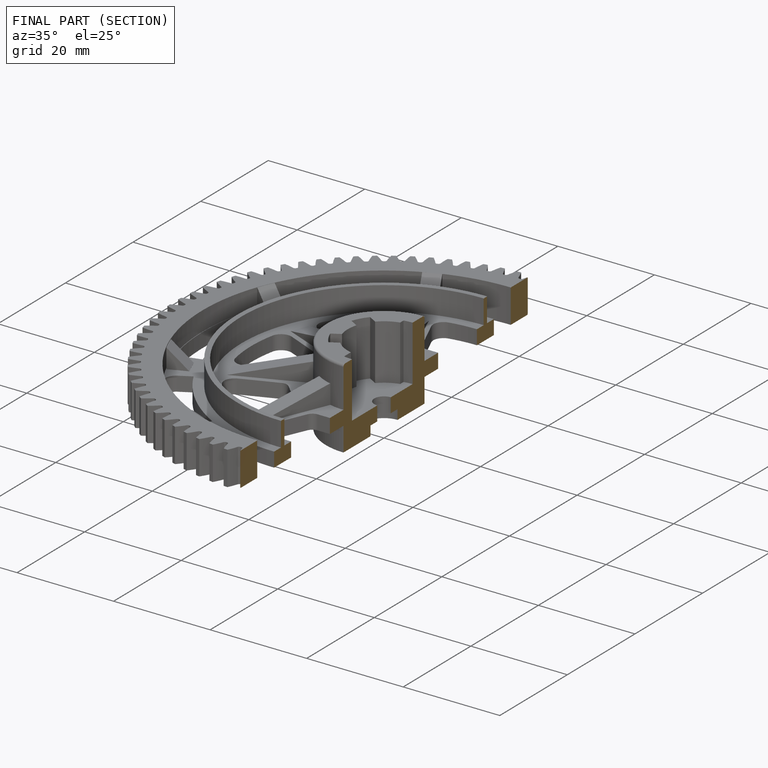
[diagram: finished part — half-section view (interior)]
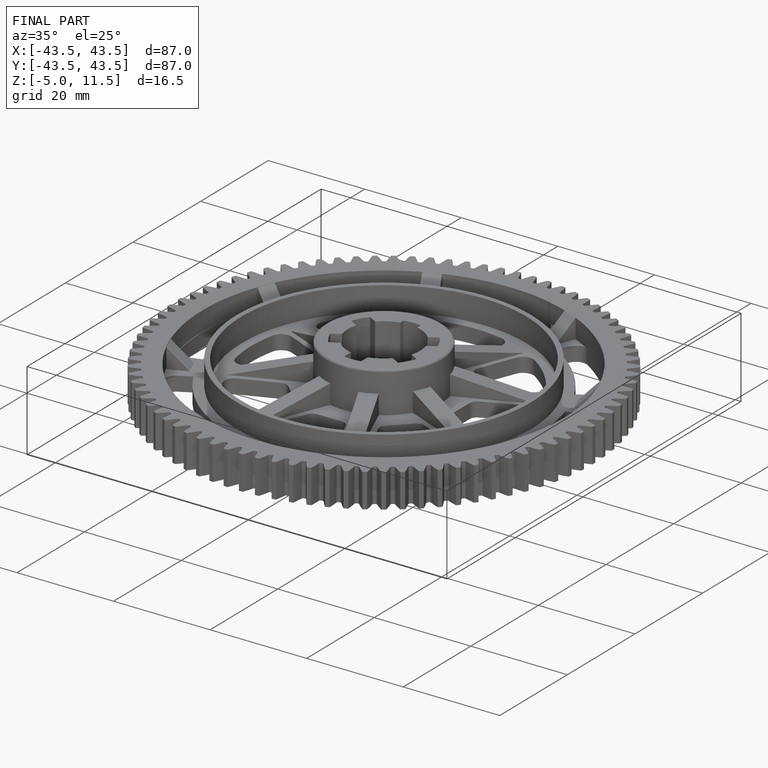
[diagram: finished part — iso view with bounding-box wireframe]
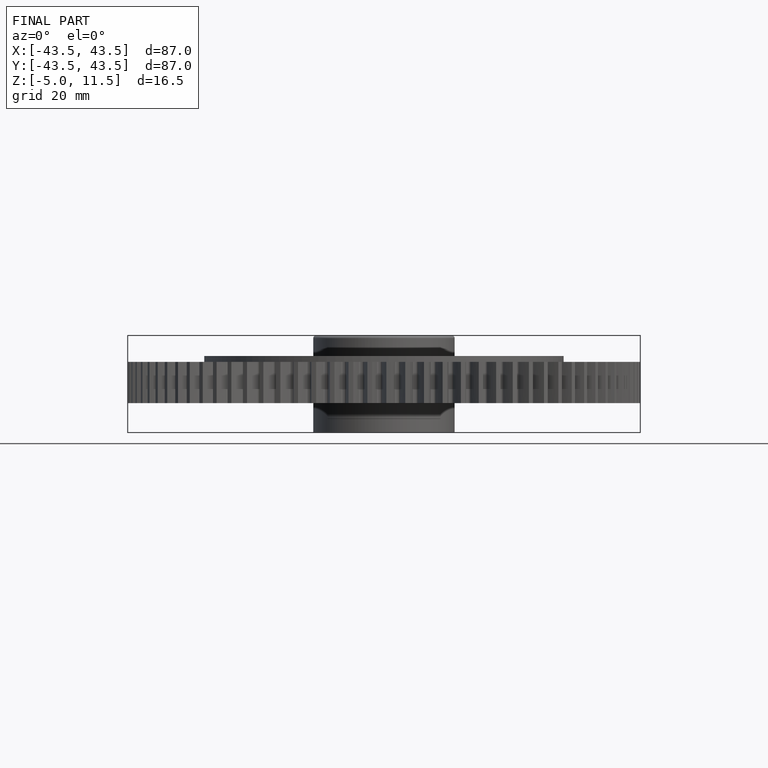
[diagram: finished part — front view with bounding-box wireframe]
